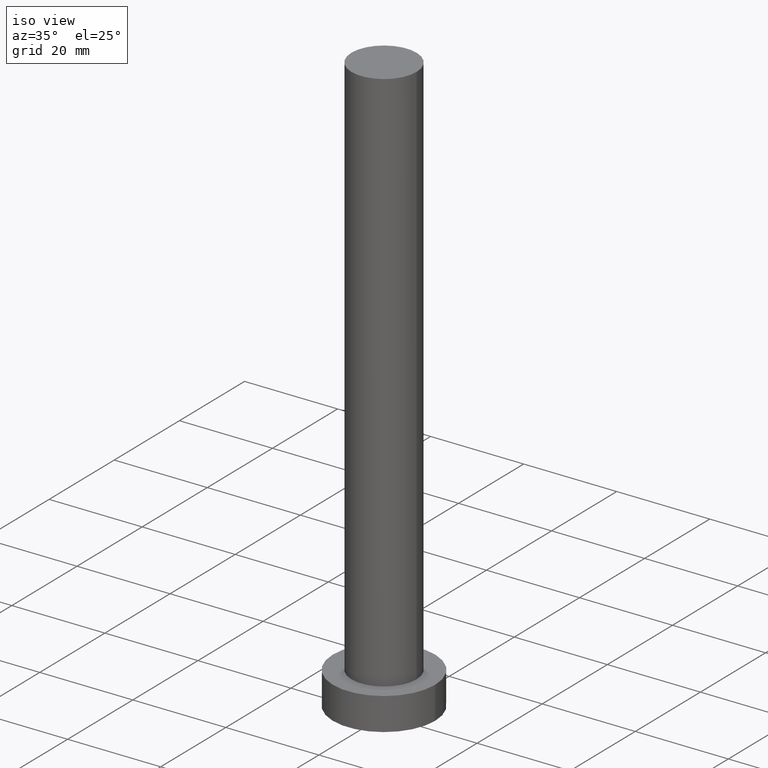
[diagram: clean part render]
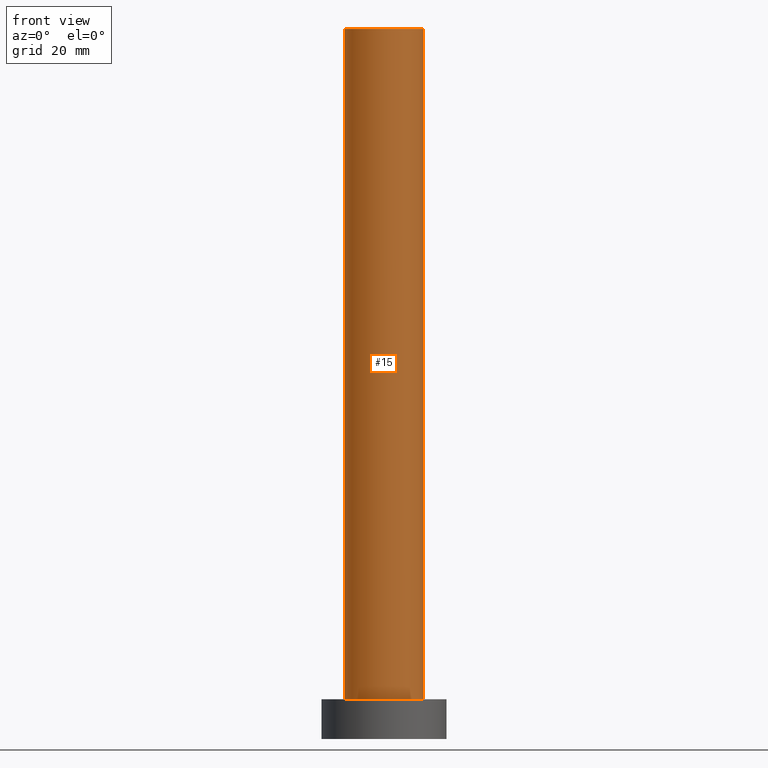
[diagram: tour spotlight — one face highlighted and labeled with its STEP entity id]
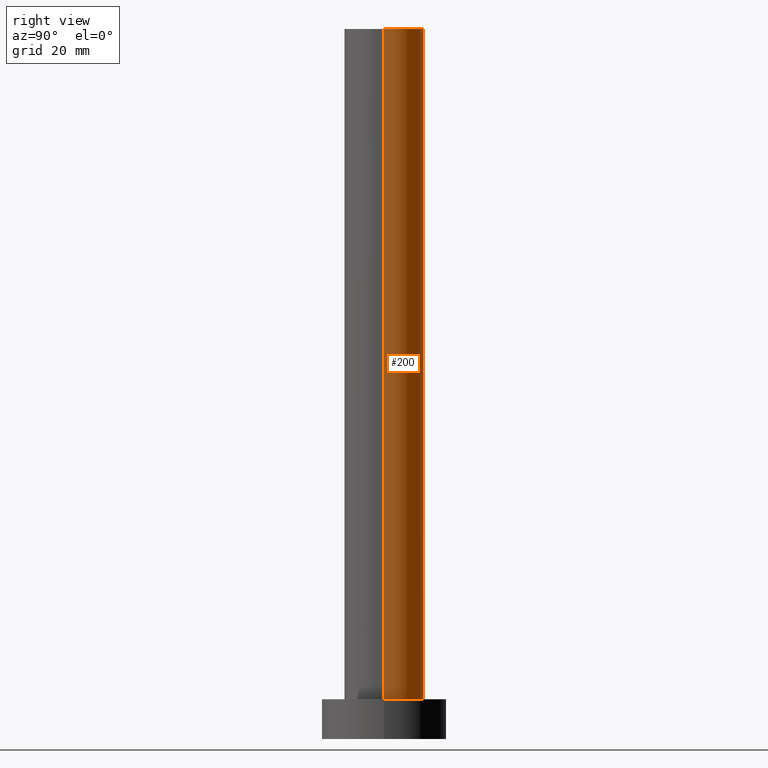
[diagram: tour spotlight — one face highlighted and labeled with its STEP entity id]
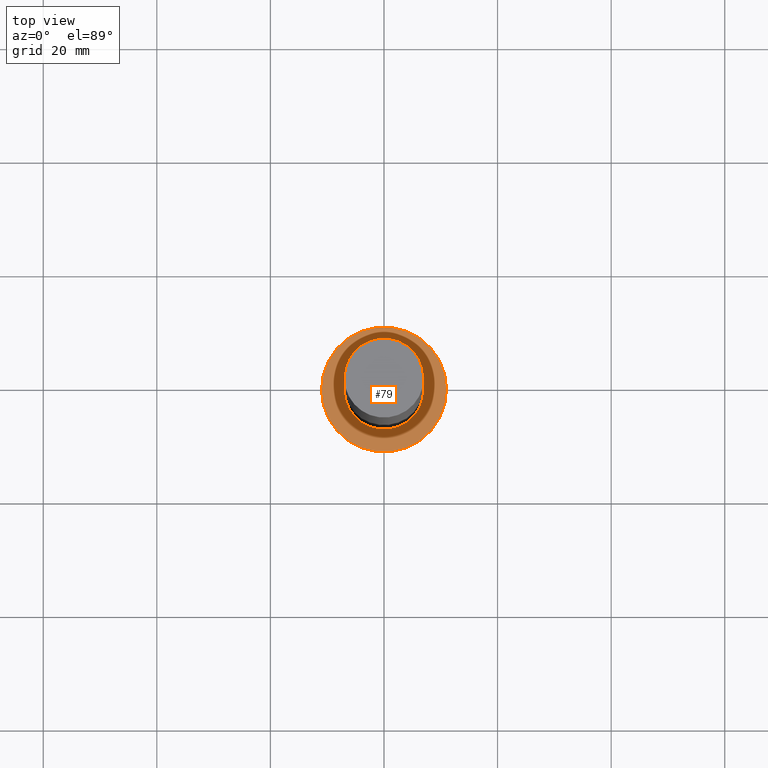
[diagram: tour spotlight — one face highlighted and labeled with its STEP entity id]
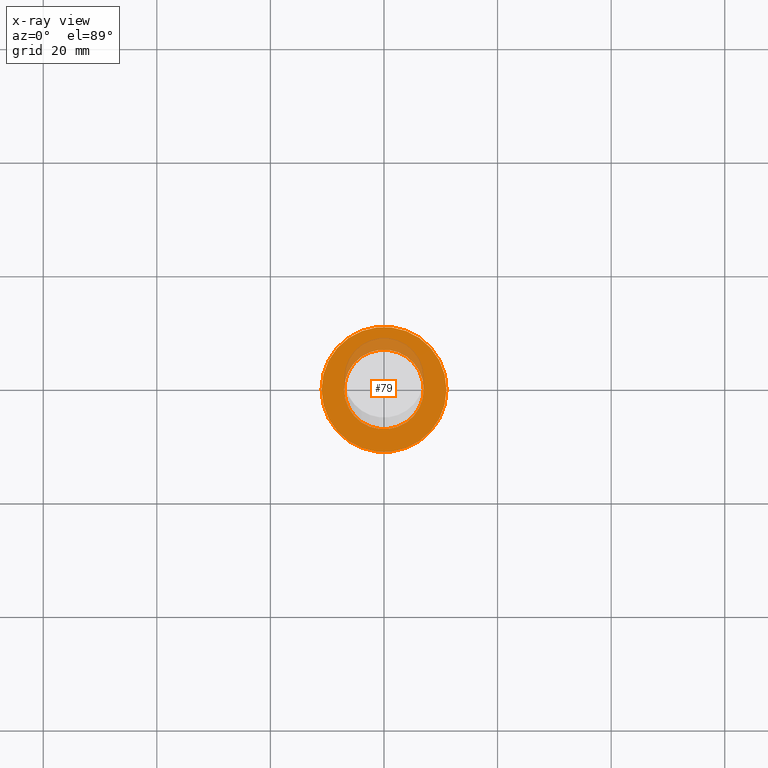
[diagram: x-ray of the same camera — body ghosted, this tour face saturated]
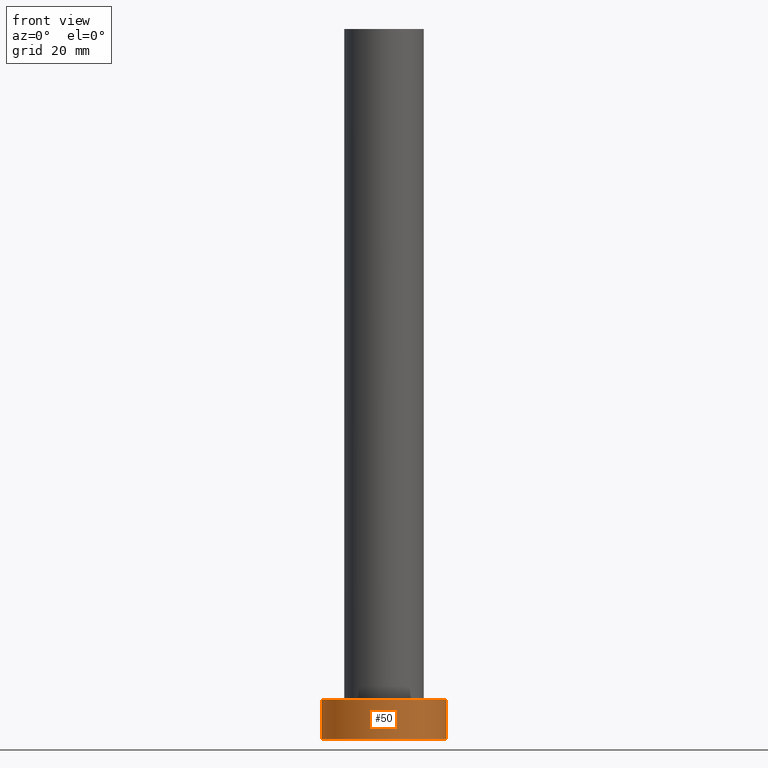
[diagram: tour spotlight — one face highlighted and labeled with its STEP entity id]
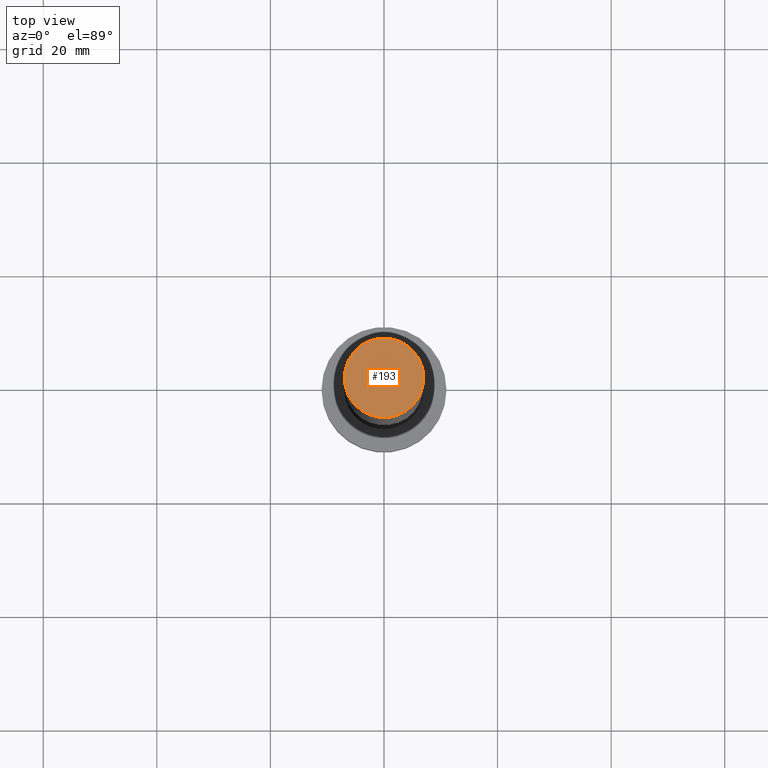
[diagram: tour spotlight — one face highlighted and labeled with its STEP entity id]
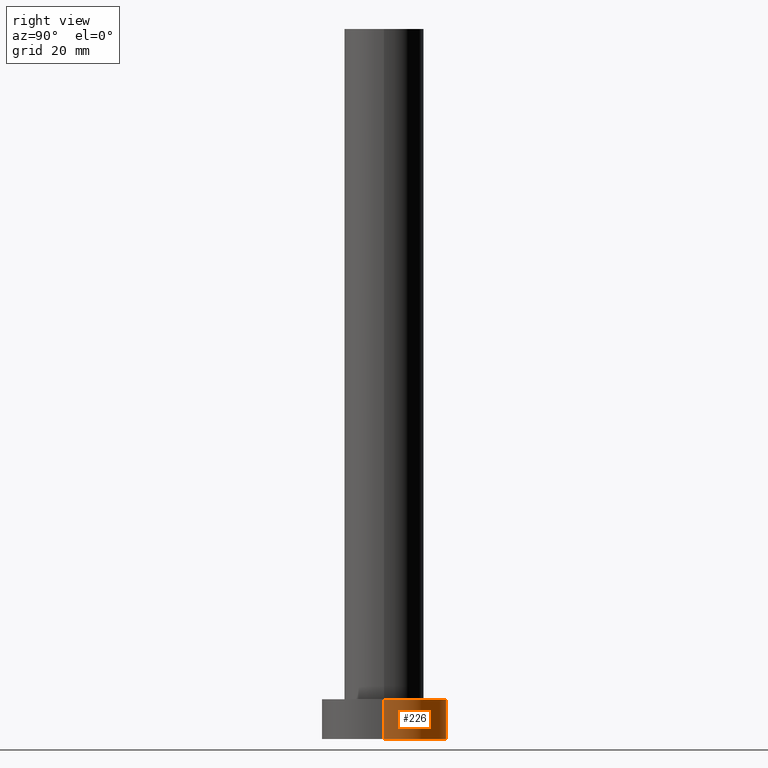
[diagram: tour spotlight — one face highlighted and labeled with its STEP entity id]
A machine part: a face-by-face anatomy tour. The part has 7 B-rep faces; the first image is the clean iso view, then the 6 largest visible faces are spotlighted one at a time (largest first), each with its STEP entity span.

Face 1 — front view, entity #15. In plain terms, the highlighted cylindrical surface (partial cylindrical patch) has radius 7 mm, axis along (-0, -0, -1).
Definition (entity closure, byte-faithful):
#6 = LINE ( 'NONE', #182, #122 ) ;
#7 = EDGE_CURVE ( 'NONE', #185, #31, #6, .T. ) ;
#8 = VERTEX_POINT ( 'NONE', #225 ) ;
#15 = ADVANCED_FACE ( 'NONE', ( #28 ), #25, .T. ) ;
#25 = CYLINDRICAL_SURFACE ( 'NONE', #97, 7.000000000000000000 ) ;
#28 = FACE_OUTER_BOUND ( 'NONE', #142, .T. ) ;
#31 = VERTEX_POINT ( 'NONE', #202 ) ;
#34 = CARTESIAN_POINT ( 'NONE',  ( 0.000000000000000000, 0.000000000000000000, 7.000000000000000000 ) ) ;
#37 = EDGE_CURVE ( 'NONE', #185, #206, #64, .T. ) ;
#49 = DIRECTION ( 'NONE',  ( -0.000000000000000000, -0.000000000000000000, -1.000000000000000000 ) ) ;
#56 = CARTESIAN_POINT ( 'NONE',  ( -7.000000000000000000, 0.000000000000000000, 125.0000000000000000 ) ) ;
#58 = AXIS2_PLACEMENT_3D ( 'NONE', #34, #194, #72 ) ;
#64 = CIRCLE ( 'NONE', #242, 7.000000000000000000 ) ;
#65 = CARTESIAN_POINT ( 'NONE',  ( 0.000000000000000000, 0.000000000000000000, 125.0000000000000000 ) ) ;
#68 = ORIENTED_EDGE ( 'NONE', *, *, #37, .F. ) ;
#72 = DIRECTION ( 'NONE',  ( 1.000000000000000000, 0.000000000000000000, 0.000000000000000000 ) ) ;
#82 = CARTESIAN_POINT ( 'NONE',  ( 0.000000000000000000, 0.000000000000000000, 125.0000000000000000 ) ) ;
#94 = CIRCLE ( 'NONE', #58, 7.000000000000000000 ) ;
#95 = DIRECTION ( 'NONE',  ( -0.000000000000000000, -0.000000000000000000, -1.000000000000000000 ) ) ;
#97 = AXIS2_PLACEMENT_3D ( 'NONE', #82, #167, #121 ) ;
#103 = DIRECTION ( 'NONE',  ( 1.000000000000000000, 0.000000000000000000, 0.000000000000000000 ) ) ;
#105 = ORIENTED_EDGE ( 'NONE', *, *, #7, .T. ) ;
#120 = CARTESIAN_POINT ( 'NONE',  ( 7.000000000000000000, 8.572527594031473190E-16, 125.0000000000000000 ) ) ;
#121 = DIRECTION ( 'NONE',  ( -1.000000000000000000, 0.000000000000000000, 0.000000000000000000 ) ) ;
#122 = VECTOR ( 'NONE', #49, 1000.000000000000000 ) ;
#141 = LINE ( 'NONE', #120, #210 ) ;
#142 = EDGE_LOOP ( 'NONE', ( #229, #68, #105, #145 ) ) ;
#145 = ORIENTED_EDGE ( 'NONE', *, *, #232, .T. ) ;
#167 = DIRECTION ( 'NONE',  ( -0.000000000000000000, -0.000000000000000000, -1.000000000000000000 ) ) ;
#174 = CARTESIAN_POINT ( 'NONE',  ( 7.000000000000000000, 8.572527594031473190E-16, 125.0000000000000000 ) ) ;
#182 = CARTESIAN_POINT ( 'NONE',  ( -7.000000000000000000, 0.000000000000000000, 125.0000000000000000 ) ) ;
#185 = VERTEX_POINT ( 'NONE', #56 ) ;
#194 = DIRECTION ( 'NONE',  ( 0.000000000000000000, 0.000000000000000000, 1.000000000000000000 ) ) ;
#202 = CARTESIAN_POINT ( 'NONE',  ( -7.000000000000000000, 0.000000000000000000, 7.000000000000000000 ) ) ;
#204 = EDGE_CURVE ( 'NONE', #206, #8, #141, .T. ) ;
#205 = DIRECTION ( 'NONE',  ( 0.000000000000000000, 0.000000000000000000, 1.000000000000000000 ) ) ;
#206 = VERTEX_POINT ( 'NONE', #174 ) ;
#210 = VECTOR ( 'NONE', #95, 1000.000000000000000 ) ;
#225 = CARTESIAN_POINT ( 'NONE',  ( 7.000000000000000000, 8.572527594031473190E-16, 7.000000000000000000 ) ) ;
#229 = ORIENTED_EDGE ( 'NONE', *, *, #204, .F. ) ;
#232 = EDGE_CURVE ( 'NONE', #31, #8, #94, .T. ) ;
#242 = AXIS2_PLACEMENT_3D ( 'NONE', #65, #205, #103 ) ;

Face 2 — right view, entity #200. In plain terms, the highlighted cylindrical surface (partial cylindrical patch) has radius 7 mm, axis along (-0, -0, -1).
Definition (entity closure, byte-faithful):
#5 = ORIENTED_EDGE ( 'NONE', *, *, #89, .T. ) ;
#6 = LINE ( 'NONE', #182, #122 ) ;
#7 = EDGE_CURVE ( 'NONE', #185, #31, #6, .T. ) ;
#8 = VERTEX_POINT ( 'NONE', #225 ) ;
#11 = AXIS2_PLACEMENT_3D ( 'NONE', #139, #44, #102 ) ;
#18 = ORIENTED_EDGE ( 'NONE', *, *, #7, .F. ) ;
#29 = CIRCLE ( 'NONE', #75, 7.000000000000000000 ) ;
#31 = VERTEX_POINT ( 'NONE', #202 ) ;
#44 = DIRECTION ( 'NONE',  ( -0.000000000000000000, -0.000000000000000000, -1.000000000000000000 ) ) ;
#49 = DIRECTION ( 'NONE',  ( -0.000000000000000000, -0.000000000000000000, -1.000000000000000000 ) ) ;
#56 = CARTESIAN_POINT ( 'NONE',  ( -7.000000000000000000, 0.000000000000000000, 125.0000000000000000 ) ) ;
#73 = CARTESIAN_POINT ( 'NONE',  ( 0.000000000000000000, 0.000000000000000000, 125.0000000000000000 ) ) ;
#75 = AXIS2_PLACEMENT_3D ( 'NONE', #73, #216, #93 ) ;
#85 = CARTESIAN_POINT ( 'NONE',  ( 0.000000000000000000, 0.000000000000000000, 7.000000000000000000 ) ) ;
#89 = EDGE_CURVE ( 'NONE', #8, #31, #207, .T. ) ;
#93 = DIRECTION ( 'NONE',  ( 1.000000000000000000, 0.000000000000000000, 0.000000000000000000 ) ) ;
#95 = DIRECTION ( 'NONE',  ( -0.000000000000000000, -0.000000000000000000, -1.000000000000000000 ) ) ;
#102 = DIRECTION ( 'NONE',  ( -1.000000000000000000, 0.000000000000000000, 0.000000000000000000 ) ) ;
#120 = CARTESIAN_POINT ( 'NONE',  ( 7.000000000000000000, 8.572527594031473190E-16, 125.0000000000000000 ) ) ;
#122 = VECTOR ( 'NONE', #49, 1000.000000000000000 ) ;
#139 = CARTESIAN_POINT ( 'NONE',  ( 0.000000000000000000, 0.000000000000000000, 125.0000000000000000 ) ) ;
#141 = LINE ( 'NONE', #120, #210 ) ;
#174 = CARTESIAN_POINT ( 'NONE',  ( 7.000000000000000000, 8.572527594031473190E-16, 125.0000000000000000 ) ) ;
#179 = CYLINDRICAL_SURFACE ( 'NONE', #11, 7.000000000000000000 ) ;
#182 = CARTESIAN_POINT ( 'NONE',  ( -7.000000000000000000, 0.000000000000000000, 125.0000000000000000 ) ) ;
#185 = VERTEX_POINT ( 'NONE', #56 ) ;
#188 = EDGE_LOOP ( 'NONE', ( #246, #254, #5, #18 ) ) ;
#190 = DIRECTION ( 'NONE',  ( 1.000000000000000000, 0.000000000000000000, 0.000000000000000000 ) ) ;
#200 = ADVANCED_FACE ( 'NONE', ( #240 ), #179, .T. ) ;
#202 = CARTESIAN_POINT ( 'NONE',  ( -7.000000000000000000, 0.000000000000000000, 7.000000000000000000 ) ) ;
#204 = EDGE_CURVE ( 'NONE', #206, #8, #141, .T. ) ;
#206 = VERTEX_POINT ( 'NONE', #174 ) ;
#207 = CIRCLE ( 'NONE', #234, 7.000000000000000000 ) ;
#210 = VECTOR ( 'NONE', #95, 1000.000000000000000 ) ;
#216 = DIRECTION ( 'NONE',  ( 0.000000000000000000, 0.000000000000000000, 1.000000000000000000 ) ) ;
#225 = CARTESIAN_POINT ( 'NONE',  ( 7.000000000000000000, 8.572527594031473190E-16, 7.000000000000000000 ) ) ;
#234 = AXIS2_PLACEMENT_3D ( 'NONE', #85, #245, #190 ) ;
#240 = FACE_OUTER_BOUND ( 'NONE', #188, .T. ) ;
#243 = EDGE_CURVE ( 'NONE', #206, #185, #29, .T. ) ;
#245 = DIRECTION ( 'NONE',  ( 0.000000000000000000, 0.000000000000000000, 1.000000000000000000 ) ) ;
#246 = ORIENTED_EDGE ( 'NONE', *, *, #243, .F. ) ;
#254 = ORIENTED_EDGE ( 'NONE', *, *, #204, .T. ) ;

Face 3 — top view, entity #79. An x-ray twin of the same camera follows (body ghosted, this face saturated) — the face is partly hidden behind the body. In plain terms, the highlighted planar face has unit normal (0, 0, 1).
Definition (entity closure, byte-faithful):
#2 = CARTESIAN_POINT ( 'NONE',  ( 0.000000000000000000, 0.000000000000000000, 7.000000000000000000 ) ) ;
#8 = VERTEX_POINT ( 'NONE', #225 ) ;
#16 = CIRCLE ( 'NONE', #163, 11.00000000000000000 ) ;
#27 = EDGE_LOOP ( 'NONE', ( #212, #99 ) ) ;
#30 = DIRECTION ( 'NONE',  ( 1.000000000000000000, 0.000000000000000000, -0.000000000000000000 ) ) ;
#31 = VERTEX_POINT ( 'NONE', #202 ) ;
#33 = CARTESIAN_POINT ( 'NONE',  ( 11.00000000000000000, 1.347111479062088405E-15, 7.000000000000000000 ) ) ;
#34 = CARTESIAN_POINT ( 'NONE',  ( 0.000000000000000000, 0.000000000000000000, 7.000000000000000000 ) ) ;
#40 = EDGE_CURVE ( 'NONE', #84, #77, #16, .T. ) ;
#42 = AXIS2_PLACEMENT_3D ( 'NONE', #213, #186, #211 ) ;
#55 = CARTESIAN_POINT ( 'NONE',  ( 0.000000000000000000, 0.000000000000000000, 7.000000000000000000 ) ) ;
#58 = AXIS2_PLACEMENT_3D ( 'NONE', #34, #194, #72 ) ;
#72 = DIRECTION ( 'NONE',  ( 1.000000000000000000, 0.000000000000000000, 0.000000000000000000 ) ) ;
#77 = VERTEX_POINT ( 'NONE', #127 ) ;
#79 = ADVANCED_FACE ( 'NONE', ( #233, #131 ), #146, .T. ) ;
#84 = VERTEX_POINT ( 'NONE', #33 ) ;
#85 = CARTESIAN_POINT ( 'NONE',  ( 0.000000000000000000, 0.000000000000000000, 7.000000000000000000 ) ) ;
#89 = EDGE_CURVE ( 'NONE', #8, #31, #207, .T. ) ;
#94 = CIRCLE ( 'NONE', #58, 7.000000000000000000 ) ;
#99 = ORIENTED_EDGE ( 'NONE', *, *, #40, .T. ) ;
#100 = EDGE_CURVE ( 'NONE', #77, #84, #150, .T. ) ;
#104 = DIRECTION ( 'NONE',  ( 0.000000000000000000, 0.000000000000000000, 1.000000000000000000 ) ) ;
#109 = EDGE_LOOP ( 'NONE', ( #124, #244 ) ) ;
#124 = ORIENTED_EDGE ( 'NONE', *, *, #232, .F. ) ;
#127 = CARTESIAN_POINT ( 'NONE',  ( -11.00000000000000000, 0.000000000000000000, 7.000000000000000000 ) ) ;
#131 = FACE_OUTER_BOUND ( 'NONE', #27, .T. ) ;
#146 = PLANE ( 'NONE',  #197 ) ;
#150 = CIRCLE ( 'NONE', #42, 11.00000000000000000 ) ;
#158 = DIRECTION ( 'NONE',  ( 1.000000000000000000, 0.000000000000000000, 0.000000000000000000 ) ) ;
#163 = AXIS2_PLACEMENT_3D ( 'NONE', #2, #104, #158 ) ;
#186 = DIRECTION ( 'NONE',  ( 0.000000000000000000, 0.000000000000000000, 1.000000000000000000 ) ) ;
#187 = DIRECTION ( 'NONE',  ( 0.000000000000000000, 0.000000000000000000, 1.000000000000000000 ) ) ;
#190 = DIRECTION ( 'NONE',  ( 1.000000000000000000, 0.000000000000000000, 0.000000000000000000 ) ) ;
#194 = DIRECTION ( 'NONE',  ( 0.000000000000000000, 0.000000000000000000, 1.000000000000000000 ) ) ;
#197 = AXIS2_PLACEMENT_3D ( 'NONE', #55, #187, #30 ) ;
#202 = CARTESIAN_POINT ( 'NONE',  ( -7.000000000000000000, 0.000000000000000000, 7.000000000000000000 ) ) ;
#207 = CIRCLE ( 'NONE', #234, 7.000000000000000000 ) ;
#211 = DIRECTION ( 'NONE',  ( 1.000000000000000000, 0.000000000000000000, 0.000000000000000000 ) ) ;
#212 = ORIENTED_EDGE ( 'NONE', *, *, #100, .T. ) ;
#213 = CARTESIAN_POINT ( 'NONE',  ( 0.000000000000000000, 0.000000000000000000, 7.000000000000000000 ) ) ;
#225 = CARTESIAN_POINT ( 'NONE',  ( 7.000000000000000000, 8.572527594031473190E-16, 7.000000000000000000 ) ) ;
#232 = EDGE_CURVE ( 'NONE', #31, #8, #94, .T. ) ;
#233 = FACE_BOUND ( 'NONE', #109, .T. ) ;
#234 = AXIS2_PLACEMENT_3D ( 'NONE', #85, #245, #190 ) ;
#244 = ORIENTED_EDGE ( 'NONE', *, *, #89, .F. ) ;
#245 = DIRECTION ( 'NONE',  ( 0.000000000000000000, 0.000000000000000000, 1.000000000000000000 ) ) ;

Face 4 — front view, entity #50. In plain terms, the highlighted cylindrical surface (partial cylindrical patch) has radius 11 mm, axis along (-0, -0, -1).
Definition (entity closure, byte-faithful):
#3 = DIRECTION ( 'NONE',  ( -0.000000000000000000, -0.000000000000000000, -1.000000000000000000 ) ) ;
#4 = ORIENTED_EDGE ( 'NONE', *, *, #100, .F. ) ;
#9 = CARTESIAN_POINT ( 'NONE',  ( 0.000000000000000000, 0.000000000000000000, 0.000000000000000000 ) ) ;
#22 = DIRECTION ( 'NONE',  ( -0.000000000000000000, -0.000000000000000000, -1.000000000000000000 ) ) ;
#24 = CYLINDRICAL_SURFACE ( 'NONE', #83, 11.00000000000000000 ) ;
#32 = CARTESIAN_POINT ( 'NONE',  ( -11.00000000000000000, 0.000000000000000000, 0.000000000000000000 ) ) ;
#33 = CARTESIAN_POINT ( 'NONE',  ( 11.00000000000000000, 1.347111479062088405E-15, 7.000000000000000000 ) ) ;
#36 = EDGE_CURVE ( 'NONE', #84, #147, #80, .T. ) ;
#42 = AXIS2_PLACEMENT_3D ( 'NONE', #213, #186, #211 ) ;
#50 = ADVANCED_FACE ( 'NONE', ( #203 ), #24, .T. ) ;
#54 = ORIENTED_EDGE ( 'NONE', *, *, #36, .F. ) ;
#77 = VERTEX_POINT ( 'NONE', #127 ) ;
#80 = LINE ( 'NONE', #162, #228 ) ;
#81 = ORIENTED_EDGE ( 'NONE', *, *, #123, .T. ) ;
#83 = AXIS2_PLACEMENT_3D ( 'NONE', #184, #3, #160 ) ;
#84 = VERTEX_POINT ( 'NONE', #33 ) ;
#100 = EDGE_CURVE ( 'NONE', #77, #84, #150, .T. ) ;
#111 = DIRECTION ( 'NONE',  ( -0.000000000000000000, -0.000000000000000000, -1.000000000000000000 ) ) ;
#123 = EDGE_CURVE ( 'NONE', #77, #126, #215, .T. ) ;
#126 = VERTEX_POINT ( 'NONE', #32 ) ;
#127 = CARTESIAN_POINT ( 'NONE',  ( -11.00000000000000000, 0.000000000000000000, 7.000000000000000000 ) ) ;
#147 = VERTEX_POINT ( 'NONE', #172 ) ;
#148 = CARTESIAN_POINT ( 'NONE',  ( -11.00000000000000000, 0.000000000000000000, 7.000000000000000000 ) ) ;
#150 = CIRCLE ( 'NONE', #42, 11.00000000000000000 ) ;
#152 = EDGE_CURVE ( 'NONE', #126, #147, #249, .T. ) ;
#160 = DIRECTION ( 'NONE',  ( -1.000000000000000000, 0.000000000000000000, 0.000000000000000000 ) ) ;
#162 = CARTESIAN_POINT ( 'NONE',  ( 11.00000000000000000, 1.347111479062088405E-15, 7.000000000000000000 ) ) ;
#169 = DIRECTION ( 'NONE',  ( 0.000000000000000000, 0.000000000000000000, 1.000000000000000000 ) ) ;
#170 = EDGE_LOOP ( 'NONE', ( #54, #4, #81, #241 ) ) ;
#172 = CARTESIAN_POINT ( 'NONE',  ( 11.00000000000000000, 1.347111479062088405E-15, 0.000000000000000000 ) ) ;
#184 = CARTESIAN_POINT ( 'NONE',  ( 0.000000000000000000, 0.000000000000000000, 7.000000000000000000 ) ) ;
#186 = DIRECTION ( 'NONE',  ( 0.000000000000000000, 0.000000000000000000, 1.000000000000000000 ) ) ;
#203 = FACE_OUTER_BOUND ( 'NONE', #170, .T. ) ;
#211 = DIRECTION ( 'NONE',  ( 1.000000000000000000, 0.000000000000000000, 0.000000000000000000 ) ) ;
#213 = CARTESIAN_POINT ( 'NONE',  ( 0.000000000000000000, 0.000000000000000000, 7.000000000000000000 ) ) ;
#215 = LINE ( 'NONE', #148, #221 ) ;
#221 = VECTOR ( 'NONE', #111, 1000.000000000000000 ) ;
#222 = AXIS2_PLACEMENT_3D ( 'NONE', #9, #169, #231 ) ;
#228 = VECTOR ( 'NONE', #22, 1000.000000000000000 ) ;
#231 = DIRECTION ( 'NONE',  ( 1.000000000000000000, 0.000000000000000000, 0.000000000000000000 ) ) ;
#241 = ORIENTED_EDGE ( 'NONE', *, *, #152, .T. ) ;
#249 = CIRCLE ( 'NONE', #222, 11.00000000000000000 ) ;

Face 5 — top view, entity #193. In plain terms, the highlighted planar face has unit normal (0, 0, 1).
Definition (entity closure, byte-faithful):
#14 = PLANE ( 'NONE',  #45 ) ;
#19 = DIRECTION ( 'NONE',  ( 0.000000000000000000, 0.000000000000000000, 1.000000000000000000 ) ) ;
#26 = ORIENTED_EDGE ( 'NONE', *, *, #37, .T. ) ;
#29 = CIRCLE ( 'NONE', #75, 7.000000000000000000 ) ;
#37 = EDGE_CURVE ( 'NONE', #185, #206, #64, .T. ) ;
#45 = AXIS2_PLACEMENT_3D ( 'NONE', #117, #19, #101 ) ;
#56 = CARTESIAN_POINT ( 'NONE',  ( -7.000000000000000000, 0.000000000000000000, 125.0000000000000000 ) ) ;
#61 = FACE_OUTER_BOUND ( 'NONE', #107, .T. ) ;
#64 = CIRCLE ( 'NONE', #242, 7.000000000000000000 ) ;
#65 = CARTESIAN_POINT ( 'NONE',  ( 0.000000000000000000, 0.000000000000000000, 125.0000000000000000 ) ) ;
#73 = CARTESIAN_POINT ( 'NONE',  ( 0.000000000000000000, 0.000000000000000000, 125.0000000000000000 ) ) ;
#75 = AXIS2_PLACEMENT_3D ( 'NONE', #73, #216, #93 ) ;
#86 = ORIENTED_EDGE ( 'NONE', *, *, #243, .T. ) ;
#93 = DIRECTION ( 'NONE',  ( 1.000000000000000000, 0.000000000000000000, 0.000000000000000000 ) ) ;
#101 = DIRECTION ( 'NONE',  ( 1.000000000000000000, 0.000000000000000000, -0.000000000000000000 ) ) ;
#103 = DIRECTION ( 'NONE',  ( 1.000000000000000000, 0.000000000000000000, 0.000000000000000000 ) ) ;
#107 = EDGE_LOOP ( 'NONE', ( #26, #86 ) ) ;
#117 = CARTESIAN_POINT ( 'NONE',  ( 0.000000000000000000, 0.000000000000000000, 125.0000000000000000 ) ) ;
#174 = CARTESIAN_POINT ( 'NONE',  ( 7.000000000000000000, 8.572527594031473190E-16, 125.0000000000000000 ) ) ;
#185 = VERTEX_POINT ( 'NONE', #56 ) ;
#193 = ADVANCED_FACE ( 'NONE', ( #61 ), #14, .T. ) ;
#205 = DIRECTION ( 'NONE',  ( 0.000000000000000000, 0.000000000000000000, 1.000000000000000000 ) ) ;
#206 = VERTEX_POINT ( 'NONE', #174 ) ;
#216 = DIRECTION ( 'NONE',  ( 0.000000000000000000, 0.000000000000000000, 1.000000000000000000 ) ) ;
#242 = AXIS2_PLACEMENT_3D ( 'NONE', #65, #205, #103 ) ;
#243 = EDGE_CURVE ( 'NONE', #206, #185, #29, .T. ) ;

Face 6 — right view, entity #226. In plain terms, the highlighted cylindrical surface (partial cylindrical patch) has radius 11 mm, axis along (-0, -0, -1).
Definition (entity closure, byte-faithful):
#2 = CARTESIAN_POINT ( 'NONE',  ( 0.000000000000000000, 0.000000000000000000, 7.000000000000000000 ) ) ;
#13 = DIRECTION ( 'NONE',  ( -0.000000000000000000, -0.000000000000000000, -1.000000000000000000 ) ) ;
#16 = CIRCLE ( 'NONE', #163, 11.00000000000000000 ) ;
#22 = DIRECTION ( 'NONE',  ( -0.000000000000000000, -0.000000000000000000, -1.000000000000000000 ) ) ;
#32 = CARTESIAN_POINT ( 'NONE',  ( -11.00000000000000000, 0.000000000000000000, 0.000000000000000000 ) ) ;
#33 = CARTESIAN_POINT ( 'NONE',  ( 11.00000000000000000, 1.347111479062088405E-15, 7.000000000000000000 ) ) ;
#36 = EDGE_CURVE ( 'NONE', #84, #147, #80, .T. ) ;
#40 = EDGE_CURVE ( 'NONE', #84, #77, #16, .T. ) ;
#71 = CIRCLE ( 'NONE', #108, 11.00000000000000000 ) ;
#77 = VERTEX_POINT ( 'NONE', #127 ) ;
#78 = AXIS2_PLACEMENT_3D ( 'NONE', #217, #13, #96 ) ;
#80 = LINE ( 'NONE', #162, #228 ) ;
#84 = VERTEX_POINT ( 'NONE', #33 ) ;
#88 = CARTESIAN_POINT ( 'NONE',  ( 0.000000000000000000, 0.000000000000000000, 0.000000000000000000 ) ) ;
#96 = DIRECTION ( 'NONE',  ( -1.000000000000000000, 0.000000000000000000, 0.000000000000000000 ) ) ;
#104 = DIRECTION ( 'NONE',  ( 0.000000000000000000, 0.000000000000000000, 1.000000000000000000 ) ) ;
#108 = AXIS2_PLACEMENT_3D ( 'NONE', #88, #130, #189 ) ;
#111 = DIRECTION ( 'NONE',  ( -0.000000000000000000, -0.000000000000000000, -1.000000000000000000 ) ) ;
#123 = EDGE_CURVE ( 'NONE', #77, #126, #215, .T. ) ;
#126 = VERTEX_POINT ( 'NONE', #32 ) ;
#127 = CARTESIAN_POINT ( 'NONE',  ( -11.00000000000000000, 0.000000000000000000, 7.000000000000000000 ) ) ;
#128 = ORIENTED_EDGE ( 'NONE', *, *, #123, .F. ) ;
#129 = EDGE_CURVE ( 'NONE', #147, #126, #71, .T. ) ;
#130 = DIRECTION ( 'NONE',  ( 0.000000000000000000, 0.000000000000000000, 1.000000000000000000 ) ) ;
#135 = CYLINDRICAL_SURFACE ( 'NONE', #78, 11.00000000000000000 ) ;
#147 = VERTEX_POINT ( 'NONE', #172 ) ;
#148 = CARTESIAN_POINT ( 'NONE',  ( -11.00000000000000000, 0.000000000000000000, 7.000000000000000000 ) ) ;
#158 = DIRECTION ( 'NONE',  ( 1.000000000000000000, 0.000000000000000000, 0.000000000000000000 ) ) ;
#162 = CARTESIAN_POINT ( 'NONE',  ( 11.00000000000000000, 1.347111479062088405E-15, 7.000000000000000000 ) ) ;
#163 = AXIS2_PLACEMENT_3D ( 'NONE', #2, #104, #158 ) ;
#164 = ORIENTED_EDGE ( 'NONE', *, *, #129, .T. ) ;
#168 = EDGE_LOOP ( 'NONE', ( #214, #208, #164, #128 ) ) ;
#172 = CARTESIAN_POINT ( 'NONE',  ( 11.00000000000000000, 1.347111479062088405E-15, 0.000000000000000000 ) ) ;
#189 = DIRECTION ( 'NONE',  ( 1.000000000000000000, 0.000000000000000000, 0.000000000000000000 ) ) ;
#208 = ORIENTED_EDGE ( 'NONE', *, *, #36, .T. ) ;
#214 = ORIENTED_EDGE ( 'NONE', *, *, #40, .F. ) ;
#215 = LINE ( 'NONE', #148, #221 ) ;
#217 = CARTESIAN_POINT ( 'NONE',  ( 0.000000000000000000, 0.000000000000000000, 7.000000000000000000 ) ) ;
#221 = VECTOR ( 'NONE', #111, 1000.000000000000000 ) ;
#226 = ADVANCED_FACE ( 'NONE', ( #251 ), #135, .T. ) ;
#228 = VECTOR ( 'NONE', #22, 1000.000000000000000 ) ;
#251 = FACE_OUTER_BOUND ( 'NONE', #168, .T. ) ;